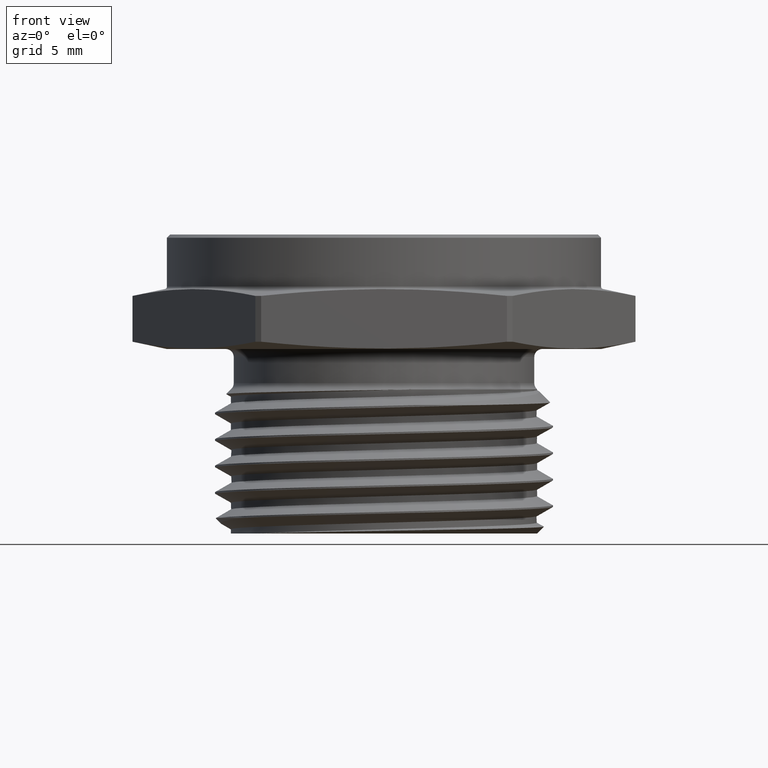
[diagram: clean part render]
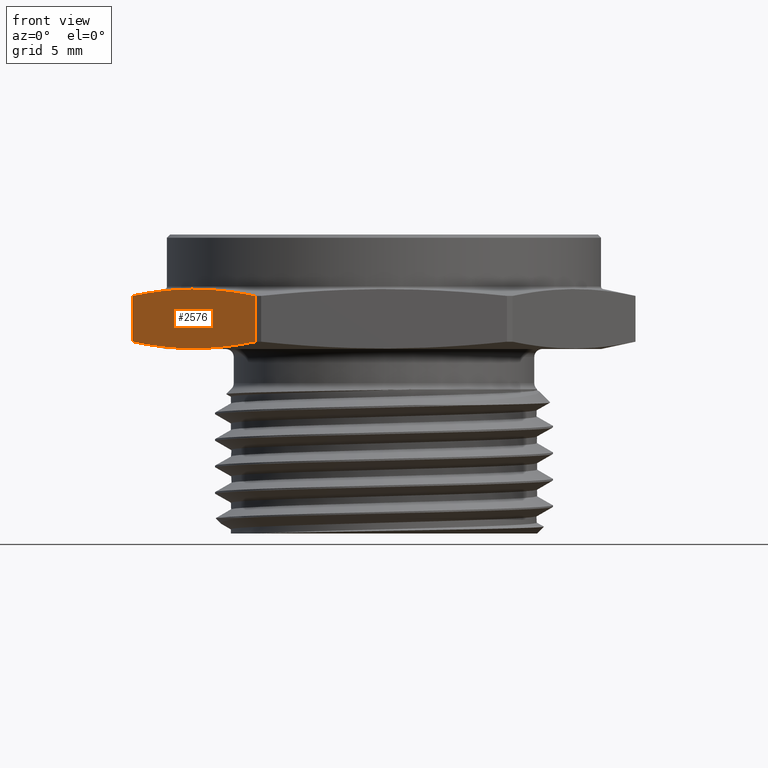
[diagram: same view with one face highlighted and labeled with its STEP entity id]
A machine part, front view. The second image highlights one B-rep face of the part: STEP entity #2576.
In plain terms, the highlighted planar face has unit normal (0.866, 0.5, -0).
Its self-contained STEP definition (entity closure, byte-faithful):
#17 = ORIENTED_EDGE ( 'NONE', *, *, #2433, .F. ) ;
#18 = ORIENTED_EDGE ( 'NONE', *, *, #2437, .F. ) ;
#19 = ORIENTED_EDGE ( 'NONE', *, *, #2387, .F. ) ;
#20 = ORIENTED_EDGE ( 'NONE', *, *, #2440, .F. ) ;
#708 = PLANE ( 'NONE',  #983 ) ;
#710 = CARTESIAN_POINT ( 'NONE',  ( -0.7967433714816832800, -4.785898061187853000E-016, 0.1899999999999999700 ) ) ;
#715 = DIRECTION ( 'NONE',  ( 0.8660254037844383700, 0.5000000000000004400, -0.0000000000000000000 ) ) ;
#716 = DIRECTION ( 'NONE',  ( -0.5000000000000004400, 0.8660254037844383700, 0.0000000000000000000 ) ) ;
#983 = AXIS2_PLACEMENT_3D ( 'NONE', #710, #715, #716 ) ;
#1671 = EDGE_LOOP ( 'NONE', ( #17, #18, #19, #20 ) ) ;
#1819 = LINE ( 'NONE', #2070, #1820 ) ;
#1820 = VECTOR ( 'NONE', #2061, 39.37007874015748100 ) ;
#1862 = LINE ( 'NONE', #3150, #1865 ) ;
#1865 = VECTOR ( 'NONE', #3152, 39.37007874015748100 ) ;
#1958 = FACE_OUTER_BOUND ( 'NONE', #1671, .T. ) ;
#2061 = DIRECTION ( 'NONE',  ( 1.224646799147349800E-016, 0.0000000000000000000, 1.000000000000000000 ) ) ;
#2070 = CARTESIAN_POINT ( 'NONE',  ( -0.7906734779410755600, -0.01051336400886784300, 2.364988292110570900E-017 ) ) ;
#2209 = B_SPLINE_CURVE_WITH_KNOTS ( 'NONE', 3,
 ( #3157, #3158, #3163, #3164, #3165, #3166, #3167, #3168, #3169 ),
 .UNSPECIFIED., .F., .F.,
 ( 4, 2, 1, 2, 4 ),
 ( 1.926240183863999500E-006, 0.004907071353161106100, 0.009812216466138347000, 0.01471736157911558900, 0.01962250669209283200 ),
 .UNSPECIFIED. ) ;
#2212 = B_SPLINE_CURVE_WITH_KNOTS ( 'NONE', 3,
 ( #3181, #3180, #3190, #3191, #3192, #3193, #3194, #3195, #3196 ),
 .UNSPECIFIED., .F., .F.,
 ( 4, 2, 1, 2, 4 ),
 ( 1.926240183765561100E-006, 0.004907071353161009800, 0.009812216466138255100, 0.01471736157911550000, 0.01962250669209274600 ),
 .UNSPECIFIED. ) ;
#2231 = VERTEX_POINT ( 'NONE', #2803 ) ;
#2233 = VERTEX_POINT ( 'NONE', #2797 ) ;
#2300 = VERTEX_POINT ( 'NONE', #2757 ) ;
#2305 = VERTEX_POINT ( 'NONE', #2751 ) ;
#2387 = EDGE_CURVE ( 'NONE', #2231, #2233, #1819, .T. ) ;
#2433 = EDGE_CURVE ( 'NONE', #2305, #2300, #1862, .T. ) ;
#2437 = EDGE_CURVE ( 'NONE', #2233, #2305, #2209, .T. ) ;
#2440 = EDGE_CURVE ( 'NONE', #2300, #2231, #2212, .T. ) ;
#2576 = ADVANCED_FACE ( 'NONE', ( #1958 ), #708, .F. ) ;
#2751 = CARTESIAN_POINT ( 'NONE',  ( -0.4044415792814496900, -0.6794866359911327900, 0.1669921611342826100 ) ) ;
#2757 = CARTESIAN_POINT ( 'NONE',  ( -0.4044415792814496900, -0.6794866359911327900, 0.02300783886571764300 ) ) ;
#2797 = CARTESIAN_POINT ( 'NONE',  ( -0.7906734779410753400, -0.01051336400886784100, 0.1669921611342827000 ) ) ;
#2803 = CARTESIAN_POINT ( 'NONE',  ( -0.7906734779410755600, -0.01051336400886784300, 0.02300783886571749300 ) ) ;
#3150 = CARTESIAN_POINT ( 'NONE',  ( -0.4044415792814496900, -0.6794866359911327900, -2.364988292110570900E-017 ) ) ;
#3152 = DIRECTION ( 'NONE',  ( -1.224646799147349800E-016, -0.0000000000000000000, -1.000000000000000000 ) ) ;
#3157 = CARTESIAN_POINT ( 'NONE',  ( -0.7906734779410753400, -0.01051336400886784100, 0.1669921611342827000 ) ) ;
#3158 = CARTESIAN_POINT ( 'NONE',  ( -0.7584874863861064100, -0.06626113667405653100, 0.1736753538400131200 ) ) ;
#3163 = CARTESIAN_POINT ( 'NONE',  ( -0.7263014948311378200, -0.1220089093392452700, 0.1790821112945624500 ) ) ;
#3164 = CARTESIAN_POINT ( 'NONE',  ( -0.6619295117211998500, -0.2335044546696226600, 0.1864576584993908000 ) ) ;
#3165 = CARTESIAN_POINT ( 'NONE',  ( -0.5975575286112623200, -0.3450000000000000300, 0.1903539930755594200 ) ) ;
#3166 = CARTESIAN_POINT ( 'NONE',  ( -0.5331855455013249100, -0.4564955453303776700, 0.1864576584993908000 ) ) ;
#3167 = CARTESIAN_POINT ( 'NONE',  ( -0.4688135623913873300, -0.5679910906607551500, 0.1790821112945624500 ) ) ;
#3168 = CARTESIAN_POINT ( 'NONE',  ( -0.4366275708364184500, -0.6237388633259437500, 0.1736753538400130100 ) ) ;
#3169 = CARTESIAN_POINT ( 'NONE',  ( -0.4044415792814496900, -0.6794866359911327900, 0.1669921611342826100 ) ) ;
#3180 = CARTESIAN_POINT ( 'NONE',  ( -0.4366275708364185100, -0.6237388633259439700, 0.01632464615998722700 ) ) ;
#3181 = CARTESIAN_POINT ( 'NONE',  ( -0.4044415792814496900, -0.6794866359911327900, 0.02300783886571764300 ) ) ;
#3190 = CARTESIAN_POINT ( 'NONE',  ( -0.4688135623913871600, -0.5679910906607551500, 0.01091788870543787200 ) ) ;
#3191 = CARTESIAN_POINT ( 'NONE',  ( -0.5331855455013246900, -0.4564955453303775100, 0.003542341500609492300 ) ) ;
#3192 = CARTESIAN_POINT ( 'NONE',  ( -0.5975575286112623200, -0.3449999999999998600, -0.0003539930755590411600 ) ) ;
#3193 = CARTESIAN_POINT ( 'NONE',  ( -0.6619295117211998500, -0.2335044546696225000, 0.003542341500609526600 ) ) ;
#3194 = CARTESIAN_POINT ( 'NONE',  ( -0.7263014948311378200, -0.1220089093392450500, 0.01091788870543794000 ) ) ;
#3195 = CARTESIAN_POINT ( 'NONE',  ( -0.7584874863861067500, -0.06626113667405626700, 0.01632464615998729900 ) ) ;
#3196 = CARTESIAN_POINT ( 'NONE',  ( -0.7906734779410755600, -0.01051336400886784300, 0.02300783886571749300 ) ) ;